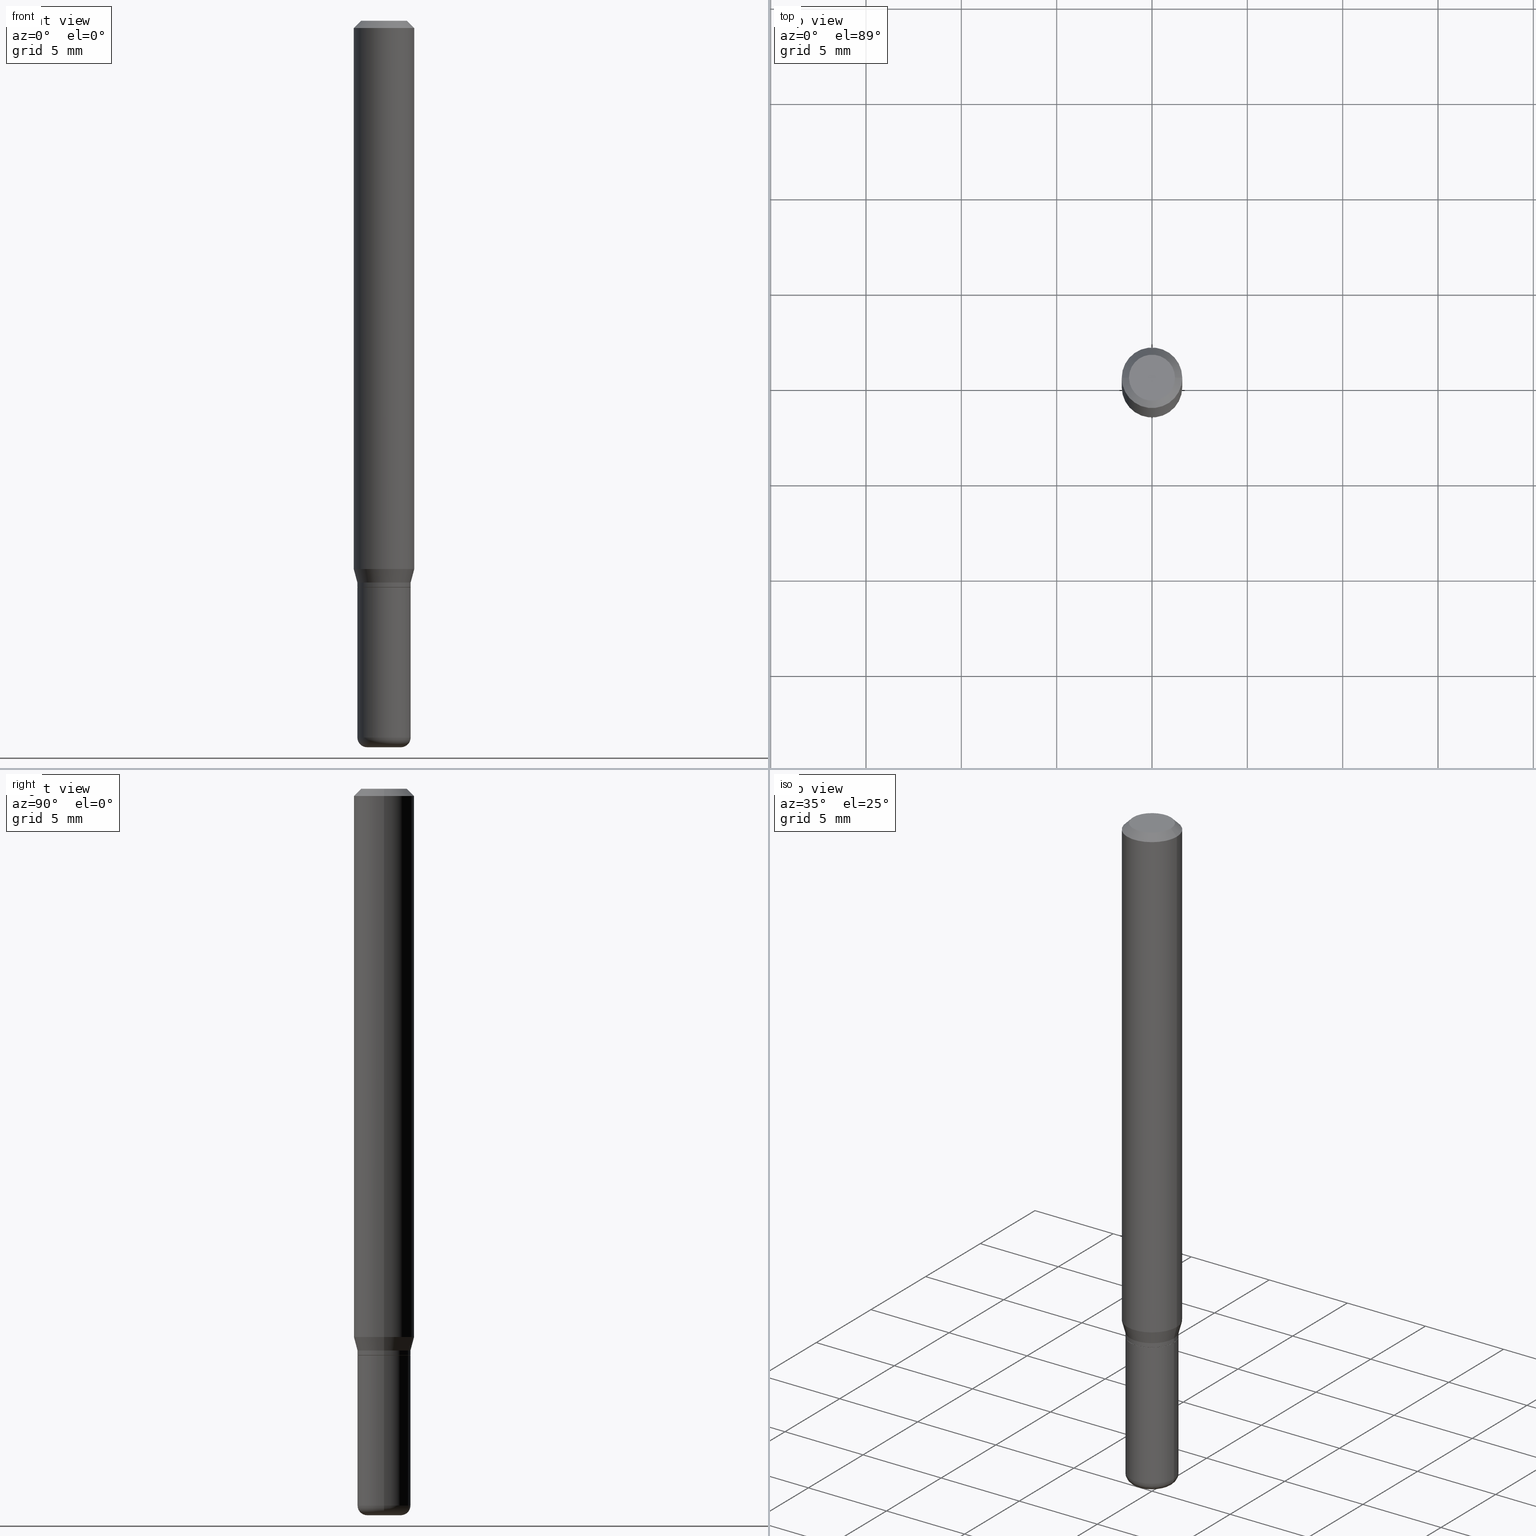
[diagram: canonical four-view strip — front | top / right | iso, engineering-drawing reading convention]
A machine part, canonical four-view strip (front | top / right | iso — engineering-drawing reading convention). The complete STEP part file that produces these views, byte-faithful:
ISO-10303-21;
HEADER;
FILE_DESCRIPTION (( 'STEP AP203' ),
    '1' );
FILE_NAME ('08759.STEP',
    '2024-02-29T20:52:16',
    ( '' ),
    ( '' ),
    'SwSTEP 2.0',
    'SolidWorks 2023',
    '' );
FILE_SCHEMA (( 'CONFIG_CONTROL_DESIGN' ));
ENDSEC;

DATA;
#1 = CARTESIAN_POINT ( 'NONE',  ( 2.836743815174758520E-29, -4.050118353058049996E-15, -1.160000000000000142 ) ) ;
#2 = PERSON ( 'UNSPECIFIED', 'UNSPECIFIED', 'UNSPECIFIED', ('UNSPECIFIED'), ('UNSPECIFIED'), ('UNSPECIFIED') ) ;
#3 = CARTESIAN_POINT ( 'NONE',  ( 0.05499999999999999334, -4.434181300330794192E-15, -1.160000000000000142 ) ) ;
#4 = EDGE_CURVE ( 'NONE', #102, #67, #190, .T. ) ;
#5 = DIRECTION ( 'NONE',  ( 1.000000000000000000, -6.982962677686265922E-15, 4.876176775795935232E-29 ) ) ;
#6 = ORIENTED_EDGE ( 'NONE', *, *, #426, .F. ) ;
#7 = DIRECTION ( 'NONE',  ( -6.982962677686266711E-15, -1.000000000000000000, 3.491481338843145583E-15 ) ) ;
#8 = VECTOR ( 'NONE', #459, 39.37007874015748143 ) ;
#9 = VERTEX_POINT ( 'NONE', #307 ) ;
#10 = PERSON_AND_ORGANIZATION_ROLE ( 'classification_officer' ) ;
#11 = LINE ( 'NONE', #58, #121 ) ;
#12 = CC_DESIGN_PERSON_AND_ORGANIZATION_ASSIGNMENT ( #192, #109, ( #452 ) ) ;
#13 = AXIS2_PLACEMENT_3D ( 'NONE', #448, #451, #172 ) ;
#14 = ORIENTED_EDGE ( 'NONE', *, *, #187, .T. ) ;
#15 = CYLINDRICAL_SURFACE ( 'NONE', #168, 0.05500000000000002109 ) ;
#16 = UNCERTAINTY_MEASURE_WITH_UNIT (LENGTH_MEASURE( 1.000000000000000082E-05 ), #164, 'distance_accuracy_value', 'NONE');
#17 = AXIS2_PLACEMENT_3D ( 'NONE', #237, #282, #240 ) ;
#18 = ORIENTED_EDGE ( 'NONE', *, *, #435, .F. ) ;
#19 = FACE_OUTER_BOUND ( 'NONE', #379, .T. ) ;
#20 = CIRCLE ( 'NONE', #430, 0.04750000000000000749 ) ;
#21 = ORIENTED_EDGE ( 'NONE', *, *, #152, .F. ) ;
#22 = FACE_OUTER_BOUND ( 'NONE', #311, .T. ) ;
#23 = EDGE_CURVE ( 'NONE', #234, #9, #29, .T. ) ;
#24 = APPROVAL ( #466, 'UNSPECIFIED' ) ;
#25 = DIRECTION ( 'NONE',  ( -2.445468806185136597E-29, 3.491481338843145583E-15, 1.000000000000000000 ) ) ;
#26 = PERSON_AND_ORGANIZATION ( #2, #157 ) ;
#27 = SECURITY_CLASSIFICATION_LEVEL ( 'unclassified' ) ;
#28 = ORIENTED_EDGE ( 'NONE', *, *, #468, .T. ) ;
#29 = CIRCLE ( 'NONE', #368, 0.05499999999999999334 ) ;
#30 = CARTESIAN_POINT ( 'NONE',  ( 0.000000000000000000, 0.000000000000000000, 0.000000000000000000 ) ) ;
#31 = MANIFOLD_SOLID_BREP ( 'Body-Move/Copy2[2]', #251 ) ;
#32 = ORIENTED_EDGE ( 'NONE', *, *, #347, .T. ) ;
#33 = LINE ( 'NONE', #191, #464 ) ;
#34 = ORIENTED_EDGE ( 'NONE', *, *, #276, .T. ) ;
#35 = CARTESIAN_POINT ( 'NONE',  ( 0.05500000000000001416, -3.840629472727447381E-16, 2.681897226687765177E-30 ) ) ;
#36 = ORIENTED_EDGE ( 'NONE', *, *, #491, .F. ) ;
#37 = ADVANCED_FACE ( 'NONE', ( #481 ), #321, .T. ) ;
#38 = DIRECTION ( 'NONE',  ( -0.2588190451025210170, 5.211531920934547886E-15, 0.9659258262890682012 ) ) ;
#39 = APPROVAL_PERSON_ORGANIZATION ( #281, #115, #285 ) ;
#40 = DIRECTION ( 'NONE',  ( -2.438088387897960049E-29, 3.491481338843145188E-15, 1.000000000000000000 ) ) ;
#41 = DIRECTION ( 'NONE',  ( -2.445468806185136597E-29, 3.491481338843145583E-15, 1.000000000000000000 ) ) ;
#42 = CARTESIAN_POINT ( 'NONE',  ( 3.668203209277704895E-29, -5.237222008264718177E-15, -1.500000000000000222 ) ) ;
#43 = CALENDAR_DATE ( 2024, 29, 2 ) ;
#44 = FACE_OUTER_BOUND ( 'NONE', #61, .T. ) ;
#45 = CARTESIAN_POINT ( 'NONE',  ( 2.861198503236610065E-29, -4.085033166446480067E-15, -1.170000000000000151 ) ) ;
#46 = LINE ( 'NONE', #331, #257 ) ;
#47 = ADVANCED_BREP_SHAPE_REPRESENTATION ( '08759', ( #205, #31, #403 ), #289 ) ;
#48 = ADVANCED_FACE ( 'NONE', ( #44 ), #163, .F. ) ;
#49 = ORIENTED_EDGE ( 'NONE', *, *, #141, .T. ) ;
#50 = CARTESIAN_POINT ( 'NONE',  ( 3.840629472727732850E-16, 0.05499999999999591327, -1.170000000000000151 ) ) ;
#51 = APPLICATION_CONTEXT ( 'configuration controlled 3d designs of mechanical parts and assemblies' ) ;
#52 = ORIENTED_EDGE ( 'NONE', *, *, #347, .F. ) ;
#53 = DIRECTION ( 'NONE',  ( 1.000000000000000000, -6.982962677686266711E-15, 4.852736867747365086E-29 ) ) ;
#54 = AXIS2_PLACEMENT_3D ( 'NONE', #66, #389, #501 ) ;
#55 = EDGE_LOOP ( 'NONE', ( #499, #425, #250, #261 ) ) ;
#56 = DIRECTION ( 'NONE',  ( 1.000000000000000000, -6.982962677686272233E-15, 0.000000000000000000 ) ) ;
#57 = AXIS2_PLACEMENT_3D ( 'NONE', #212, #7, #56 ) ;
#58 = CARTESIAN_POINT ( 'NONE',  ( -0.05500000000000002109, 3.907985046680552521E-16, -2.705414299640199063E-30 ) ) ;
#59 = DESIGN_CONTEXT ( 'detailed design', #130, 'design' ) ;
#60 = VECTOR ( 'NONE', #147, 39.37007874015748143 ) ;
#61 = EDGE_LOOP ( 'NONE', ( #429, #407 ) ) ;
#62 = DIRECTION ( 'NONE',  ( -2.445468806185136597E-29, 3.491481338843145583E-15, 1.000000000000000000 ) ) ;
#63 = ORIENTED_EDGE ( 'NONE', *, *, #220, .F. ) ;
#64 = LOCAL_TIME ( 15, 52, 16.00000000000000000, #508 ) ;
#65 = LINE ( 'NONE', #188, #73 ) ;
#66 = CARTESIAN_POINT ( 'NONE',  ( 3.619293833154002365E-29, -5.167392381487854879E-15, -1.479999999999999982 ) ) ;
#67 = VERTEX_POINT ( 'NONE', #110 ) ;
#68 = AXIS2_PLACEMENT_3D ( 'NONE', #45, #88, #160 ) ;
#69 = CONICAL_SURFACE ( 'NONE', #68, 0.05450000000000002065, 0.7853981633975507526 ) ;
#70 = CONICAL_SURFACE ( 'NONE', #254, 0.05499999999999999334, 0.2617993877991496854 ) ;
#71 = LINE ( 'NONE', #35, #8 ) ;
#72 = ORIENTED_EDGE ( 'NONE', *, *, #264, .T. ) ;
#73 = VECTOR ( 'NONE', #268, 39.37007874015748143 ) ;
#74 = EDGE_CURVE ( 'NONE', #509, #105, #402, .T. ) ;
#75 = DIRECTION ( 'NONE',  ( -2.445468806185136597E-29, 3.491481338843145583E-15, 1.000000000000000000 ) ) ;
#76 = ORIENTED_EDGE ( 'NONE', *, *, #354, .T. ) ;
#77 = AXIS2_PLACEMENT_3D ( 'NONE', #483, #126, #134 ) ;
#78 = APPROVAL_DATE_TIME ( #314, #24 ) ;
#79 = CARTESIAN_POINT ( 'NONE',  ( -0.03500000000000000333, -4.882562963784241160E-15, -1.500000000000000222 ) ) ;
#80 = CALENDAR_DATE ( 2024, 29, 2 ) ;
#81 = DIRECTION ( 'NONE',  ( -2.445468806185136877E-29, 3.491481338843145188E-15, 1.000000000000000000 ) ) ;
#82 = ADVANCED_FACE ( 'NONE', ( #320 ), #69, .T. ) ;
#83 = APPROVAL_PERSON_ORGANIZATION ( #475, #293, #162 ) ;
#84 = PERSON_AND_ORGANIZATION_ROLE ( 'creator' ) ;
#85 = CARTESIAN_POINT ( 'NONE',  ( 2.861198503236610065E-29, -4.085033166446480067E-15, -1.170000000000000151 ) ) ;
#86 = DIRECTION ( 'NONE',  ( 1.000000000000000000, -6.982962677686265922E-15, 4.876176775795935793E-29 ) ) ;
#87 = SHAPE_DEFINITION_REPRESENTATION ( #490, #47 ) ;
#88 = DIRECTION ( 'NONE',  ( -2.445468806185136597E-29, 3.491481338843145583E-15, 1.000000000000000000 ) ) ;
#89 = LINE ( 'NONE', #3, #133 ) ;
#90 = CIRCLE ( 'NONE', #103, 0.05500000000000000028 ) ;
#91 = CARTESIAN_POINT ( 'NONE',  ( 0.05450000000000002065, -4.465604632380382045E-15, -1.170000000000000151 ) ) ;
#92 = CIRCLE ( 'NONE', #423, 0.03500000000000000333 ) ;
#93 = DIRECTION ( 'NONE',  ( -2.445468806185136597E-29, 3.491481338843145583E-15, 1.000000000000000000 ) ) ;
#94 = EDGE_LOOP ( 'NONE', ( #328, #297, #340, #474 ) ) ;
#95 = CYLINDRICAL_SURFACE ( 'NONE', #279, 0.05500000000000002109 ) ;
#96 = ORIENTED_EDGE ( 'NONE', *, *, #507, .T. ) ;
#97 = DIRECTION ( 'NONE',  ( 1.000000000000000000, -6.982962677686275388E-15, 0.000000000000000000 ) ) ;
#98 = LOCAL_TIME ( 15, 52, 16.00000000000000000, #308 ) ;
#99 = CARTESIAN_POINT ( 'NONE',  ( -0.03500000000000000333, -4.918702423971819593E-15, -1.479999999999999982 ) ) ;
#100 = CARTESIAN_POINT ( 'NONE',  ( 0.05500000000000000028, -4.469096113719225052E-15, -1.170000000000000151 ) ) ;
#101 = DIRECTION ( 'NONE',  ( 1.000000000000000000, -6.982962677686266711E-15, 4.876176775795935793E-29 ) ) ;
#102 = VERTEX_POINT ( 'NONE', #208 ) ;
#103 = AXIS2_PLACEMENT_3D ( 'NONE', #419, #62, #222 ) ;
#104 = CARTESIAN_POINT ( 'NONE',  ( 3.619293833154002365E-29, -5.167392381487854879E-15, -1.479999999999999982 ) ) ;
#105 = VERTEX_POINT ( 'NONE', #441 ) ;
#106 = DIRECTION ( 'NONE',  ( 1.000000000000000000, -6.982962677686266711E-15, 4.852736867747365086E-29 ) ) ;
#107 = EDGE_CURVE ( 'NONE', #186, #391, #232, .T. ) ;
#108 = CARTESIAN_POINT ( 'NONE',  ( -0.04750000000000000749, 3.578768372314221353E-16, 2.731847993664239060E-16 ) ) ;
#109 = PERSON_AND_ORGANIZATION_ROLE ( 'design_owner' ) ;
#110 = CARTESIAN_POINT ( 'NONE',  ( 0.06250000000000000000, -4.888073874380378612E-16, -0.01499999999999970281 ) ) ;
#111 = AXIS2_PLACEMENT_3D ( 'NONE', #99, #179, #176 ) ;
#112 = AXIS2_PLACEMENT_3D ( 'NONE', #439, #360, #518 ) ;
#113 = DATE_TIME_ROLE ( 'creation_date' ) ;
#114 = EDGE_CURVE ( 'NONE', #234, #169, #89, .T. ) ;
#115 = APPROVAL ( #119, 'UNSPECIFIED' ) ;
#116 = CARTESIAN_POINT ( 'NONE',  ( 2.836743815174758520E-29, -4.050118353058049996E-15, -1.160000000000000142 ) ) ;
#117 = FACE_OUTER_BOUND ( 'NONE', #94, .T. ) ;
#118 = TOROIDAL_SURFACE ( 'NONE', #54, 0.03500000000000000333, 0.02000000000000003511 ) ;
#119 = APPROVAL_STATUS ( 'not_yet_approved' ) ;
#120 = DIRECTION ( 'NONE',  ( 1.000000000000000000, -6.982962677686265922E-15, 4.876176775795935793E-29 ) ) ;
#121 = VECTOR ( 'NONE', #175, 39.37007874015748143 ) ;
#122 = AXIS2_PLACEMENT_3D ( 'NONE', #252, #247, #256 ) ;
#123 = CARTESIAN_POINT ( 'NONE',  ( 2.836743815174758520E-29, -4.050118353058049996E-15, -1.160000000000000142 ) ) ;
#124 = AXIS2_PLACEMENT_3D ( 'NONE', #408, #367, #295 ) ;
#125 = AXIS2_PLACEMENT_3D ( 'NONE', #166, #246, #120 ) ;
#126 = DIRECTION ( 'NONE',  ( -2.445468806185136597E-29, 3.491481338843145583E-15, 1.000000000000000000 ) ) ;
#127 = PRODUCT_DEFINITION_FORMATION_WITH_SPECIFIED_SOURCE ( 'ANY', '', #452, .NOT_KNOWN. ) ;
#128 = DIRECTION ( 'NONE',  ( -2.445468806185136597E-29, 3.491481338843145583E-15, 1.000000000000000000 ) ) ;
#129 = ORIENTED_EDGE ( 'NONE', *, *, #248, .F. ) ;
#130 = APPLICATION_CONTEXT ( 'configuration controlled 3d designs of mechanical parts and assemblies' ) ;
#131 = FACE_OUTER_BOUND ( 'NONE', #334, .T. ) ;
#132 = EDGE_LOOP ( 'NONE', ( #393, #49, #36, #500 ) ) ;
#133 = VECTOR ( 'NONE', #356, 39.37007874015748143 ) ;
#134 = DIRECTION ( 'NONE',  ( 1.000000000000000000, -6.982962677686266711E-15, 4.876176775795935793E-29 ) ) ;
#135 = ORIENTED_EDGE ( 'NONE', *, *, #4, .F. ) ;
#136 = DIRECTION ( 'NONE',  ( 1.000000000000000000, -6.982962677686262766E-15, 0.000000000000000000 ) ) ;
#137 = LOCAL_TIME ( 15, 52, 16.00000000000000000, #400 ) ;
#138 = DIRECTION ( 'NONE',  ( -0.7071067811866199593, 7.493145998870616062E-15, 0.7071067811864750752 ) ) ;
#139 = AXIS2_PLACEMENT_3D ( 'NONE', #373, #298, #288 ) ;
#140 = EDGE_LOOP ( 'NONE', ( #337, #32, #193, #216 ) ) ;
#141 = EDGE_CURVE ( 'NONE', #9, #509, #401, .T. ) ;
#142 = CARTESIAN_POINT ( 'NONE',  ( 0.03500000000000000333, -5.481625701983738143E-15, -1.500000000000000222 ) ) ;
#143 = DIRECTION ( 'NONE',  ( 2.438088387897960049E-29, -3.491481338843145188E-15, -1.000000000000000000 ) ) ;
#144 = AXIS2_PLACEMENT_3D ( 'NONE', #469, #392, #300 ) ;
#145 = EDGE_LOOP ( 'NONE', ( #460, #76, #463, #156 ) ) ;
#146 = FACE_OUTER_BOUND ( 'NONE', #371, .T. ) ;
#147 = DIRECTION ( 'NONE',  ( 0.7071067811865479058, -7.319954787623257623E-15, -0.7071067811865471286 ) ) ;
#148 = ADVANCED_FACE ( 'NONE', ( #286 ), #245, .T. ) ;
#149 = EDGE_LOOP ( 'NONE', ( #488, #341, #72, #369 ) ) ;
#150 = CIRCLE ( 'NONE', #227, 0.04750000000000000749 ) ;
#151 = DIRECTION ( 'NONE',  ( -0.7071067811865479058, 2.468850131082261005E-15, -0.7071067811865471286 ) ) ;
#152 = EDGE_CURVE ( 'NONE', #9, #234, #470, .T. ) ;
#153 = AXIS2_PLACEMENT_3D ( 'NONE', #123, #363, #396 ) ;
#154 =( NAMED_UNIT ( * ) PLANE_ANGLE_UNIT ( ) SI_UNIT ( $, .RADIAN. ) );
#155 = EDGE_LOOP ( 'NONE', ( #270, #218, #385, #6 ) ) ;
#156 = ORIENTED_EDGE ( 'NONE', *, *, #174, .F. ) ;
#157 = ORGANIZATION ( 'UNSPECIFIED', 'UNSPECIFIED', '' ) ;
#158 = EDGE_CURVE ( 'NONE', #105, #67, #445, .T. ) ;
#159 = CC_DESIGN_DATE_AND_TIME_ASSIGNMENT ( #322, #113, ( #272 ) ) ;
#160 = DIRECTION ( 'NONE',  ( 1.000000000000000000, -6.982962677686267499E-15, 0.000000000000000000 ) ) ;
#161 = ADVANCED_FACE ( 'NONE', ( #196 ), #70, .T. ) ;
#162 = APPROVAL_ROLE ( '' ) ;
#163 = PLANE ( 'NONE',  #125 ) ;
#164 =( CONVERSION_BASED_UNIT ( 'INCH', #198 ) LENGTH_UNIT ( ) NAMED_UNIT ( #170 ) );
#165 = CARTESIAN_POINT ( 'NONE',  ( 3.619293833154002365E-29, -5.167392381487854879E-15, -1.479999999999999982 ) ) ;
#166 = CARTESIAN_POINT ( 'NONE',  ( 2.861198503236610065E-29, -4.085033166446480067E-15, -1.170000000000000151 ) ) ;
#167 = ADVANCED_FACE ( 'NONE', ( #117 ), #397, .T. ) ;
#168 = AXIS2_PLACEMENT_3D ( 'NONE', #219, #454, #5 ) ;
#169 = VERTEX_POINT ( 'NONE', #202 ) ;
#170 = DIMENSIONAL_EXPONENTS ( 1.000000000000000000, 0.000000000000000000, 0.000000000000000000, 0.000000000000000000, 0.000000000000000000, 0.000000000000000000, 0.000000000000000000 ) ;
#171 = CARTESIAN_POINT ( 'NONE',  ( 3.668203209277704895E-29, -5.237222008264718177E-15, -1.500000000000000222 ) ) ;
#172 = DIRECTION ( 'NONE',  ( 1.000000000000000000, -6.982962677686266711E-15, 0.000000000000000000 ) ) ;
#173 = ORIENTED_EDGE ( 'NONE', *, *, #248, .T. ) ;
#174 = EDGE_CURVE ( 'NONE', #418, #505, #493, .T. ) ;
#175 = DIRECTION ( 'NONE',  ( -2.445468806185136877E-29, 3.491481338843145188E-15, 1.000000000000000000 ) ) ;
#176 = DIRECTION ( 'NONE',  ( -1.000000000000000000, 7.105427357601009747E-15, 0.000000000000000000 ) ) ;
#177 = CARTESIAN_POINT ( 'NONE',  ( -6.680649051745406845E-45, 9.538196290434862081E-31, 2.731847993664263218E-16 ) ) ;
#178 = CC_DESIGN_PERSON_AND_ORGANIZATION_ASSIGNMENT ( #271, #215, ( #127 ) ) ;
#179 = DIRECTION ( 'NONE',  ( 7.105427357601001859E-15, 1.000000000000000000, -3.491481338843145583E-15 ) ) ;
#180 = CONICAL_SURFACE ( 'NONE', #411, 0.06250000000000000000, 0.7853981633974488341 ) ;
#181 = EDGE_LOOP ( 'NONE', ( #213, #390, #253, #52 ) ) ;
#182 = CARTESIAN_POINT ( 'NONE',  ( 0.000000000000000000, 0.000000000000000000, 0.000000000000000000 ) ) ;
#183 = ORIENTED_EDGE ( 'NONE', *, *, #74, .T. ) ;
#184 = ORIENTED_EDGE ( 'NONE', *, *, #174, .T. ) ;
#185 = DIRECTION ( 'NONE',  ( 1.000000000000000000, -6.982962677686265922E-15, 4.876176775795935232E-29 ) ) ;
#186 = VERTEX_POINT ( 'NONE', #79 ) ;
#187 = EDGE_CURVE ( 'NONE', #391, #186, #92, .T. ) ;
#188 = CARTESIAN_POINT ( 'NONE',  ( -0.05500000000000001416, 3.907985046680552028E-16, -2.705414299640198712E-30 ) ) ;
#189 = CC_DESIGN_APPROVAL ( #115, ( #127 ) ) ;
#190 = LINE ( 'NONE', #504, #60 ) ;
#191 = CARTESIAN_POINT ( 'NONE',  ( 0.05500000000000002109, -3.840629472727447874E-16, 2.681897226687765527E-30 ) ) ;
#192 = PERSON_AND_ORGANIZATION ( #2, #157 ) ;
#193 = ORIENTED_EDGE ( 'NONE', *, *, #395, .T. ) ;
#194 = CARTESIAN_POINT ( 'NONE',  ( 2.861198503236610065E-29, -4.085033166446480067E-15, -1.170000000000000151 ) ) ;
#195 =( LENGTH_UNIT ( ) NAMED_UNIT ( * ) SI_UNIT ( $, .METRE. ) );
#196 = FACE_OUTER_BOUND ( 'NONE', #132, .T. ) ;
#197 = CIRCLE ( 'NONE', #57, 0.02000000000000003511 ) ;
#198 = LENGTH_MEASURE_WITH_UNIT ( LENGTH_MEASURE( 0.02539999999999999897 ), #195 );
#199 = CIRCLE ( 'NONE', #201, 0.05500000000000003497 ) ;
#200 = CC_DESIGN_PERSON_AND_ORGANIZATION_ASSIGNMENT ( #346, #10, ( #274 ) ) ;
#201 = AXIS2_PLACEMENT_3D ( 'NONE', #165, #370, #97 ) ;
#202 = CARTESIAN_POINT ( 'NONE',  ( 0.06250000000000000000, -4.388825627286631627E-15, -1.132009618943233598 ) ) ;
#203 = CALENDAR_DATE ( 2024, 29, 2 ) ;
#204 = EDGE_CURVE ( 'NONE', #315, #304, #404, .T. ) ;
#205 = MANIFOLD_SOLID_BREP ( 'Body-Move/Copy2[1]', #310 ) ;
#206 = DIRECTION ( 'NONE',  ( 1.000000000000000000, -6.982962677686262766E-15, 0.000000000000000000 ) ) ;
#207 = LOCAL_TIME ( 15, 52, 16.00000000000000000, #398 ) ;
#208 = CARTESIAN_POINT ( 'NONE',  ( 0.04750000000000000749, -4.035134999187568762E-16, 2.731847993664288856E-16 ) ) ;
#209 = CARTESIAN_POINT ( 'NONE',  ( -0.05500000000000002109, -3.692488921109003903E-15, -1.169500000000000206 ) ) ;
#210 = EDGE_CURVE ( 'NONE', #382, #374, #450, .T. ) ;
#211 = ORIENTED_EDGE ( 'NONE', *, *, #435, .T. ) ;
#212 = CARTESIAN_POINT ( 'NONE',  ( 0.03500000000000000333, -5.411796075206874844E-15, -1.479999999999999982 ) ) ;
#213 = ORIENTED_EDGE ( 'NONE', *, *, #141, .F. ) ;
#214 = DIRECTION ( 'NONE',  ( -2.445468806185136597E-29, 3.491481338843145583E-15, 1.000000000000000000 ) ) ;
#215 = PERSON_AND_ORGANIZATION_ROLE ( 'design_supplier' ) ;
#216 = ORIENTED_EDGE ( 'NONE', *, *, #158, .F. ) ;
#217 = CARTESIAN_POINT ( 'NONE',  ( 2.768294211427201206E-29, -3.952390459931240746E-15, -1.132009618943233598 ) ) ;
#218 = ORIENTED_EDGE ( 'NONE', *, *, #290, .T. ) ;
#219 = CARTESIAN_POINT ( 'NONE',  ( 0.000000000000000000, 0.000000000000000000, 0.000000000000000000 ) ) ;
#220 = EDGE_CURVE ( 'NONE', #417, #294, #199, .T. ) ;
#221 = ORIENTED_EDGE ( 'NONE', *, *, #210, .T. ) ;
#222 = DIRECTION ( 'NONE',  ( 1.000000000000000000, -6.982962677686262766E-15, 0.000000000000000000 ) ) ;
#223 = CC_DESIGN_APPROVAL ( #293, ( #272 ) ) ;
#224 = ORIENTED_EDGE ( 'NONE', *, *, #395, .F. ) ;
#225 = DIRECTION ( 'NONE',  ( -2.445468806185136597E-29, 3.491481338843145583E-15, 1.000000000000000000 ) ) ;
#226 = DATE_AND_TIME ( #422, #98 ) ;
#227 = AXIS2_PLACEMENT_3D ( 'NONE', #177, #93, #53 ) ;
#228 = ADVANCED_FACE ( 'NONE', ( #131 ), #375, .T. ) ;
#229 = PRODUCT_RELATED_PRODUCT_CATEGORY ( 'detail', '', ( #452 ) ) ;
#230 = FACE_OUTER_BOUND ( 'NONE', #140, .T. ) ;
#231 = ORIENTED_EDGE ( 'NONE', *, *, #243, .F. ) ;
#232 = CIRCLE ( 'NONE', #361, 0.03500000000000000333 ) ;
#233 = DIRECTION ( 'NONE',  ( -2.445468806185136877E-29, 3.491481338843145188E-15, 1.000000000000000000 ) ) ;
#234 = VERTEX_POINT ( 'NONE', #489 ) ;
#235 = CARTESIAN_POINT ( 'NONE',  ( 3.668203209277632395E-31, -5.237222008264614861E-17, -0.01499999999999970281 ) ) ;
#236 = ORIENTED_EDGE ( 'NONE', *, *, #243, .T. ) ;
#237 = CARTESIAN_POINT ( 'NONE',  ( 3.668203209277632395E-31, -5.237222008264614861E-17, -0.01499999999999970281 ) ) ;
#238 = ADVANCED_FACE ( 'NONE', ( #413 ), #327, .F. ) ;
#239 = PERSON_AND_ORGANIZATION ( #2, #157 ) ;
#240 = DIRECTION ( 'NONE',  ( -1.000000000000000000, 6.982962677686266711E-15, 0.000000000000000000 ) ) ;
#241 = AXIS2_PLACEMENT_3D ( 'NONE', #182, #498, #101 ) ;
#242 = DIRECTION ( 'NONE',  ( -2.445468806185136597E-29, 3.491481338843145583E-15, 1.000000000000000000 ) ) ;
#243 = EDGE_CURVE ( 'NONE', #186, #294, #358, .T. ) ;
#244 = DIRECTION ( 'NONE',  ( 1.000000000000000000, -6.982962677686263555E-15, 0.000000000000000000 ) ) ;
#245 = CONICAL_SURFACE ( 'NONE', #17, 0.06250000000000000000, 0.7853981633974488341 ) ;
#246 = DIRECTION ( 'NONE',  ( -2.438088387897960049E-29, 3.491481338843145188E-15, 1.000000000000000000 ) ) ;
#247 = DIRECTION ( 'NONE',  ( -2.445468806185136597E-29, 3.491481338843145583E-15, 1.000000000000000000 ) ) ;
#248 = EDGE_CURVE ( 'NONE', #391, #417, #197, .T. ) ;
#249 = DIRECTION ( 'NONE',  ( 1.000000000000000000, -6.982962677686265922E-15, 4.876176775795935232E-29 ) ) ;
#250 = ORIENTED_EDGE ( 'NONE', *, *, #319, .T. ) ;
#251 = CLOSED_SHELL ( 'NONE', ( #409, #167, #148, #342, #161, #37, #484, #449, #458, #48, #82, #228 ) ) ;
#252 = CARTESIAN_POINT ( 'NONE',  ( 2.861198503236610065E-29, -4.085033166446480067E-15, -1.170000000000000151 ) ) ;
#253 = ORIENTED_EDGE ( 'NONE', *, *, #114, .T. ) ;
#254 = AXIS2_PLACEMENT_3D ( 'NONE', #477, #325, #283 ) ;
#255 = VECTOR ( 'NONE', #151, 39.37007874015748143 ) ;
#256 = DIRECTION ( 'NONE',  ( 1.000000000000000000, -6.982962677686267499E-15, 0.000000000000000000 ) ) ;
#257 = VECTOR ( 'NONE', #258, 39.37007874015748143 ) ;
#258 = DIRECTION ( 'NONE',  ( 0.7071067811866199593, -2.468850131083015945E-15, 0.7071067811864750752 ) ) ;
#259 = ORIENTED_EDGE ( 'NONE', *, *, #187, .F. ) ;
#260 = FACE_OUTER_BOUND ( 'NONE', #263, .T. ) ;
#261 = ORIENTED_EDGE ( 'NONE', *, *, #276, .F. ) ;
#262 = PLANE ( 'NONE',  #502 ) ;
#263 = EDGE_LOOP ( 'NONE', ( #14, #236, #63, #129 ) ) ;
#264 = EDGE_CURVE ( 'NONE', #67, #105, #406, .T. ) ;
#265 = CARTESIAN_POINT ( 'NONE',  ( -0.05450000000000002065, -3.697787375457225517E-15, -1.170000000000000151 ) ) ;
#266 = APPROVAL_ROLE ( '' ) ;
#267 = ORIENTED_EDGE ( 'NONE', *, *, #443, .T. ) ;
#268 = DIRECTION ( 'NONE',  ( -2.445468806185136877E-29, 3.491481338843145188E-15, 1.000000000000000000 ) ) ;
#269 = VECTOR ( 'NONE', #81, 39.37007874015748143 ) ;
#270 = ORIENTED_EDGE ( 'NONE', *, *, #220, .T. ) ;
#271 = PERSON_AND_ORGANIZATION ( #2, #157 ) ;
#272 = PRODUCT_DEFINITION ( 'UNKNOWN', '', #127, #59 ) ;
#273 = DIRECTION ( 'NONE',  ( 2.445468806185136597E-29, -3.491481338843145583E-15, -1.000000000000000000 ) ) ;
#274 = SECURITY_CLASSIFICATION ( '', '', #27 ) ;
#275 = ORIENTED_EDGE ( 'NONE', *, *, #264, .F. ) ;
#276 = EDGE_CURVE ( 'NONE', #374, #382, #349, .T. ) ;
#277 = APPROVAL_DATE_TIME ( #478, #293 ) ;
#278 = CARTESIAN_POINT ( 'NONE',  ( -0.06250000000000000000, 4.440892098500626162E-16, -3.074334431409316114E-30 ) ) ;
#279 = AXIS2_PLACEMENT_3D ( 'NONE', #486, #128, #249 ) ;
#280 = VECTOR ( 'NONE', #138, 39.37007874015748143 ) ;
#281 = PERSON_AND_ORGANIZATION ( #2, #157 ) ;
#282 = DIRECTION ( 'NONE',  ( 2.445468806185136597E-29, -3.491481338843145583E-15, -1.000000000000000000 ) ) ;
#283 = DIRECTION ( 'NONE',  ( 1.000000000000000000, -6.982962677686263555E-15, 0.000000000000000000 ) ) ;
#284 = CC_DESIGN_APPROVAL ( #24, ( #274 ) ) ;
#285 = APPROVAL_ROLE ( '' ) ;
#286 = FACE_OUTER_BOUND ( 'NONE', #149, .T. ) ;
#287 = DIRECTION ( 'NONE',  ( -2.445468806185136597E-29, 3.491481338843145583E-15, 1.000000000000000000 ) ) ;
#288 = DIRECTION ( 'NONE',  ( 1.000000000000000000, -6.982962677686275388E-15, 0.000000000000000000 ) ) ;
#289 =( GEOMETRIC_REPRESENTATION_CONTEXT ( 3 ) GLOBAL_UNCERTAINTY_ASSIGNED_CONTEXT ( ( #16 ) ) GLOBAL_UNIT_ASSIGNED_CONTEXT ( ( #164, #154, #438 ) ) REPRESENTATION_CONTEXT ( 'NONE', 'WORKASPACE' ) );
#290 = EDGE_CURVE ( 'NONE', #294, #418, #11, .T. ) ;
#291 = CYLINDRICAL_SURFACE ( 'NONE', #77, 0.06250000000000000000 ) ;
#292 = DIRECTION ( 'NONE',  ( -1.000000000000000000, 6.982962677686265922E-15, -4.876176775795935793E-29 ) ) ;
#293 = APPROVAL ( #359, 'UNSPECIFIED' ) ;
#294 = VERTEX_POINT ( 'NONE', #446 ) ;
#295 = DIRECTION ( 'NONE',  ( 1.000000000000000000, -6.982962677686265922E-15, 4.876176775795935232E-29 ) ) ;
#296 = ADVANCED_FACE ( 'NONE', ( #410 ), #95, .T. ) ;
#297 = ORIENTED_EDGE ( 'NONE', *, *, #388, .T. ) ;
#298 = DIRECTION ( 'NONE',  ( -2.445468806185136597E-29, 3.491481338843145583E-15, 1.000000000000000000 ) ) ;
#299 = CARTESIAN_POINT ( 'NONE',  ( -0.05500000000000000028, -4.235414269299112812E-15, -1.170000000000000151 ) ) ;
#300 = DIRECTION ( 'NONE',  ( 1.000000000000000000, -6.982962677686262766E-15, 0.000000000000000000 ) ) ;
#301 = ORIENTED_EDGE ( 'NONE', *, *, #332, .F. ) ;
#302 = DIRECTION ( 'NONE',  ( -1.000000000000000000, 6.982962677686265922E-15, -4.876176775795935793E-29 ) ) ;
#303 = EDGE_LOOP ( 'NONE', ( #135, #301, #267, #387 ) ) ;
#304 = VERTEX_POINT ( 'NONE', #492 ) ;
#305 = DIRECTION ( 'NONE',  ( -2.445468806185136877E-29, 3.491481338843145188E-15, 1.000000000000000000 ) ) ;
#306 = AXIS2_PLACEMENT_3D ( 'NONE', #378, #415, #335 ) ;
#307 = CARTESIAN_POINT ( 'NONE',  ( -0.05499999999999999334, -3.583810549235585944E-15, -1.160000000000000142 ) ) ;
#308 = COORDINATED_UNIVERSAL_TIME_OFFSET ( 5, 0, .BEHIND. ) ;
#309 = FACE_OUTER_BOUND ( 'NONE', #303, .T. ) ;
#310 = CLOSED_SHELL ( 'NONE', ( #420, #312, #238, #296, #372, #511 ) ) ;
#311 = EDGE_LOOP ( 'NONE', ( #221, #211, #467, #381 ) ) ;
#312 = ADVANCED_FACE ( 'NONE', ( #329 ), #15, .T. ) ;
#313 = PERSON_AND_ORGANIZATION ( #2, #157 ) ;
#314 = DATE_AND_TIME ( #317, #64 ) ;
#315 = VERTEX_POINT ( 'NONE', #91 ) ;
#316 = APPLICATION_PROTOCOL_DEFINITION ( 'international standard', 'config_control_design', 1994, #130 ) ;
#317 = CALENDAR_DATE ( 2024, 29, 2 ) ;
#318 = DIRECTION ( 'NONE',  ( 1.000000000000000000, -6.982962677686267499E-15, 0.000000000000000000 ) ) ;
#319 = EDGE_CURVE ( 'NONE', #315, #382, #46, .T. ) ;
#320 = FACE_OUTER_BOUND ( 'NONE', #55, .T. ) ;
#321 = CONICAL_SURFACE ( 'NONE', #377, 0.05499999999999999334, 0.2617993877991496854 ) ;
#322 = DATE_AND_TIME ( #203, #207 ) ;
#323 = CARTESIAN_POINT ( 'NONE',  ( 2.861198503236610065E-29, -4.085033166446480067E-15, -1.170000000000000151 ) ) ;
#324 = DIRECTION ( 'NONE',  ( -2.445468806185136597E-29, 3.491481338843145583E-15, 1.000000000000000000 ) ) ;
#325 = DIRECTION ( 'NONE',  ( -2.445468806185136597E-29, 3.491481338843145583E-15, 1.000000000000000000 ) ) ;
#326 = EDGE_CURVE ( 'NONE', #304, #315, #456, .T. ) ;
#327 = PLANE ( 'NONE',  #350 ) ;
#328 = ORIENTED_EDGE ( 'NONE', *, *, #204, .T. ) ;
#329 = FACE_OUTER_BOUND ( 'NONE', #155, .T. ) ;
#330 = AXIS2_PLACEMENT_3D ( 'NONE', #194, #394, #476 ) ;
#331 = CARTESIAN_POINT ( 'NONE',  ( 0.05450000000000002065, -4.465604632380382045E-15, -1.170000000000000151 ) ) ;
#332 = EDGE_CURVE ( 'NONE', #453, #102, #150, .T. ) ;
#333 = ORIENTED_EDGE ( 'NONE', *, *, #354, .F. ) ;
#334 = EDGE_LOOP ( 'NONE', ( #18, #34, #510, #21 ) ) ;
#335 = DIRECTION ( 'NONE',  ( 1.000000000000000000, -6.982962677686268288E-15, 0.000000000000000000 ) ) ;
#336 = CARTESIAN_POINT ( 'NONE',  ( -0.06250000000000000000, 3.840629472727455270E-16, -0.01499999999999970281 ) ) ;
#337 = ORIENTED_EDGE ( 'NONE', *, *, #74, .F. ) ;
#338 = VECTOR ( 'NONE', #233, 39.37007874015748143 ) ;
#339 = LINE ( 'NONE', #265, #280 ) ;
#340 = ORIENTED_EDGE ( 'NONE', *, *, #210, .F. ) ;
#341 = ORIENTED_EDGE ( 'NONE', *, *, #4, .T. ) ;
#342 = ADVANCED_FACE ( 'NONE', ( #19 ), #291, .T. ) ;
#343 = CARTESIAN_POINT ( 'NONE',  ( 0.05500000000000003497, -5.551455328760600652E-15, -1.479999999999999982 ) ) ;
#344 = ORIENTED_EDGE ( 'NONE', *, *, #107, .F. ) ;
#345 = CARTESIAN_POINT ( 'NONE',  ( -6.680649051745406845E-45, 9.538196290434862081E-31, 2.731847993664263218E-16 ) ) ;
#346 = PERSON_AND_ORGANIZATION ( #2, #157 ) ;
#347 = EDGE_CURVE ( 'NONE', #509, #169, #457, .T. ) ;
#348 = EDGE_LOOP ( 'NONE', ( #259, #344 ) ) ;
#349 = CIRCLE ( 'NONE', #306, 0.05500000000000002109 ) ;
#350 = AXIS2_PLACEMENT_3D ( 'NONE', #50, #455, #292 ) ;
#351 = APPROVAL_DATE_TIME ( #362, #115 ) ;
#352 = CARTESIAN_POINT ( 'NONE',  ( 0.000000000000000000, 0.000000000000000000, 0.000000000000000000 ) ) ;
#353 = CARTESIAN_POINT ( 'NONE',  ( 3.668203209277632395E-31, -5.237222008264614861E-17, -0.01499999999999970281 ) ) ;
#354 = EDGE_CURVE ( 'NONE', #294, #417, #357, .T. ) ;
#355 = DIRECTION ( 'NONE',  ( 0.000000000000000000, 0.000000000000000000, 1.000000000000000000 ) ) ;
#356 = DIRECTION ( 'NONE',  ( 0.2588190451025210170, 1.565188264969624531E-15, 0.9659258262890682012 ) ) ;
#357 = CIRCLE ( 'NONE', #139, 0.05500000000000003497 ) ;
#358 = CIRCLE ( 'NONE', #111, 0.02000000000000003511 ) ;
#359 = APPROVAL_STATUS ( 'not_yet_approved' ) ;
#360 = DIRECTION ( 'NONE',  ( -2.445468806185136597E-29, 3.491481338843145583E-15, 1.000000000000000000 ) ) ;
#361 = AXIS2_PLACEMENT_3D ( 'NONE', #171, #324, #365 ) ;
#362 = DATE_AND_TIME ( #43, #137 ) ;
#363 = DIRECTION ( 'NONE',  ( -2.445468806185136597E-29, 3.491481338843145583E-15, 1.000000000000000000 ) ) ;
#364 = AXIS2_PLACEMENT_3D ( 'NONE', #431, #143, #302 ) ;
#365 = DIRECTION ( 'NONE',  ( 1.000000000000000000, -6.982962677686276966E-15, 0.000000000000000000 ) ) ;
#366 = AXIS2_PLACEMENT_3D ( 'NONE', #217, #214, #136 ) ;
#367 = DIRECTION ( 'NONE',  ( -2.445468806185136597E-29, 3.491481338843145583E-15, 1.000000000000000000 ) ) ;
#368 = AXIS2_PLACEMENT_3D ( 'NONE', #116, #516, #244 ) ;
#369 = ORIENTED_EDGE ( 'NONE', *, *, #443, .F. ) ;
#370 = DIRECTION ( 'NONE',  ( -2.445468806185136597E-29, 3.491481338843145583E-15, 1.000000000000000000 ) ) ;
#371 = EDGE_LOOP ( 'NONE', ( #517, #28 ) ) ;
#372 = ADVANCED_FACE ( 'NONE', ( #405 ), #434, .T. ) ;
#373 = CARTESIAN_POINT ( 'NONE',  ( 3.619293833154002365E-29, -5.167392381487854879E-15, -1.479999999999999982 ) ) ;
#374 = VERTEX_POINT ( 'NONE', #209 ) ;
#375 = CYLINDRICAL_SURFACE ( 'NONE', #124, 0.05500000000000001416 ) ;
#376 = EDGE_LOOP ( 'NONE', ( #96, #184 ) ) ;
#377 = AXIS2_PLACEMENT_3D ( 'NONE', #1, #41, #514 ) ;
#378 = CARTESIAN_POINT ( 'NONE',  ( 2.859975768833517824E-29, -4.083287425777059353E-15, -1.169500000000000206 ) ) ;
#379 = EDGE_LOOP ( 'NONE', ( #414, #183, #275, #224 ) ) ;
#380 = CARTESIAN_POINT ( 'NONE',  ( -0.06250000000000000000, -3.508301250081178130E-15, -1.132009618943233598 ) ) ;
#381 = ORIENTED_EDGE ( 'NONE', *, *, #494, .F. ) ;
#382 = VERTEX_POINT ( 'NONE', #495 ) ;
#383 = CARTESIAN_POINT ( 'NONE',  ( 0.06250000000000000000, -4.364351673553916694E-16, 3.047610484872459871E-30 ) ) ;
#384 = DATE_TIME_ROLE ( 'classification_date' ) ;
#385 = ORIENTED_EDGE ( 'NONE', *, *, #507, .F. ) ;
#386 = LINE ( 'NONE', #383, #338 ) ;
#387 = ORIENTED_EDGE ( 'NONE', *, *, #158, .T. ) ;
#388 = EDGE_CURVE ( 'NONE', #304, #374, #339, .T. ) ;
#389 = DIRECTION ( 'NONE',  ( -2.445468806185136597E-29, 3.491481338843145583E-15, 1.000000000000000000 ) ) ;
#390 = ORIENTED_EDGE ( 'NONE', *, *, #152, .T. ) ;
#391 = VERTEX_POINT ( 'NONE', #142 ) ;
#392 = DIRECTION ( 'NONE',  ( -2.445468806185136597E-29, 3.491481338843145583E-15, 1.000000000000000000 ) ) ;
#393 = ORIENTED_EDGE ( 'NONE', *, *, #23, .T. ) ;
#394 = DIRECTION ( 'NONE',  ( -2.445468806185136597E-29, 3.491481338843145583E-15, 1.000000000000000000 ) ) ;
#395 = EDGE_CURVE ( 'NONE', #169, #67, #386, .T. ) ;
#396 = DIRECTION ( 'NONE',  ( 1.000000000000000000, -6.982962677686263555E-15, 0.000000000000000000 ) ) ;
#397 = CONICAL_SURFACE ( 'NONE', #412, 0.05450000000000002065, 0.7853981633975507526 ) ;
#398 = COORDINATED_UNIVERSAL_TIME_OFFSET ( 5, 0, .BEHIND. ) ;
#399 = DIRECTION ( 'NONE',  ( -2.445468806185136597E-29, 3.491481338843145583E-15, 1.000000000000000000 ) ) ;
#400 = COORDINATED_UNIVERSAL_TIME_OFFSET ( 5, 0, .BEHIND. ) ;
#401 = LINE ( 'NONE', #482, #427 ) ;
#402 = LINE ( 'NONE', #278, #269 ) ;
#403 = AXIS2_PLACEMENT_3D ( 'NONE', #352, #355, #515 ) ;
#404 = CIRCLE ( 'NONE', #330, 0.05450000000000002065 ) ;
#405 = FACE_OUTER_BOUND ( 'NONE', #496, .T. ) ;
#406 = CIRCLE ( 'NONE', #13, 0.06250000000000000000 ) ;
#407 = ORIENTED_EDGE ( 'NONE', *, *, #326, .F. ) ;
#408 = CARTESIAN_POINT ( 'NONE',  ( 0.000000000000000000, 0.000000000000000000, 0.000000000000000000 ) ) ;
#409 = ADVANCED_FACE ( 'NONE', ( #22 ), #424, .T. ) ;
#410 = FACE_OUTER_BOUND ( 'NONE', #145, .T. ) ;
#411 = AXIS2_PLACEMENT_3D ( 'NONE', #235, #273, #471 ) ;
#412 = AXIS2_PLACEMENT_3D ( 'NONE', #85, #242, #318 ) ;
#413 = FACE_OUTER_BOUND ( 'NONE', #376, .T. ) ;
#414 = ORIENTED_EDGE ( 'NONE', *, *, #491, .T. ) ;
#415 = DIRECTION ( 'NONE',  ( -2.445468806185136597E-29, 3.491481338843145583E-15, 1.000000000000000000 ) ) ;
#416 = CC_DESIGN_DATE_AND_TIME_ASSIGNMENT ( #226, #384, ( #274 ) ) ;
#417 = VERTEX_POINT ( 'NONE', #343 ) ;
#418 = VERTEX_POINT ( 'NONE', #299 ) ;
#419 = CARTESIAN_POINT ( 'NONE',  ( 2.861198503236610065E-29, -4.085033166446480067E-15, -1.170000000000000151 ) ) ;
#420 = ADVANCED_FACE ( 'NONE', ( #260 ), #118, .T. ) ;
#421 = CARTESIAN_POINT ( 'NONE',  ( 3.582686580359766038E-29, -5.359686688179453325E-15, -1.500000000000000222 ) ) ;
#422 = CALENDAR_DATE ( 2024, 29, 2 ) ;
#423 = AXIS2_PLACEMENT_3D ( 'NONE', #42, #437, #444 ) ;
#424 = CYLINDRICAL_SURFACE ( 'NONE', #479, 0.05500000000000001416 ) ;
#425 = ORIENTED_EDGE ( 'NONE', *, *, #326, .T. ) ;
#426 = EDGE_CURVE ( 'NONE', #417, #505, #33, .T. ) ;
#427 = VECTOR ( 'NONE', #38, 39.37007874015748143 ) ;
#428 = LINE ( 'NONE', #336, #255 ) ;
#429 = ORIENTED_EDGE ( 'NONE', *, *, #204, .F. ) ;
#430 = AXIS2_PLACEMENT_3D ( 'NONE', #345, #75, #106 ) ;
#431 = CARTESIAN_POINT ( 'NONE',  ( 3.316907271900976589E-16, 0.04750000000000000749, -2.925296391183627249E-17 ) ) ;
#432 = ORIENTED_EDGE ( 'NONE', *, *, #107, .T. ) ;
#433 = APPLICATION_PROTOCOL_DEFINITION ( 'international standard', 'config_control_design', 1994, #51 ) ;
#434 = TOROIDAL_SURFACE ( 'NONE', #497, 0.03500000000000000333, 0.02000000000000003511 ) ;
#435 = EDGE_CURVE ( 'NONE', #374, #9, #65, .T. ) ;
#436 = CC_DESIGN_PERSON_AND_ORGANIZATION_ASSIGNMENT ( #239, #84, ( #272 ) ) ;
#437 = DIRECTION ( 'NONE',  ( -2.445468806185136597E-29, 3.491481338843145583E-15, 1.000000000000000000 ) ) ;
#438 =( NAMED_UNIT ( * ) SI_UNIT ( $, .STERADIAN. ) SOLID_ANGLE_UNIT ( ) );
#439 = CARTESIAN_POINT ( 'NONE',  ( 2.859975768833517824E-29, -4.083287425777059353E-15, -1.169500000000000206 ) ) ;
#440 = COORDINATED_UNIVERSAL_TIME_OFFSET ( 5, 0, .BEHIND. ) ;
#441 = CARTESIAN_POINT ( 'NONE',  ( -0.06250000000000000000, -1.558292130156880508E-15, -0.01499999999999970281 ) ) ;
#442 = DIRECTION ( 'NONE',  ( 1.000000000000000000, -6.982962677686266711E-15, 0.000000000000000000 ) ) ;
#443 = EDGE_CURVE ( 'NONE', #453, #105, #428, .T. ) ;
#444 = DIRECTION ( 'NONE',  ( 1.000000000000000000, -6.982962677686276966E-15, 0.000000000000000000 ) ) ;
#445 = CIRCLE ( 'NONE', #461, 0.06250000000000000000 ) ;
#446 = CARTESIAN_POINT ( 'NONE',  ( -0.05500000000000002803, -4.235414269299112812E-15, -1.479999999999999982 ) ) ;
#447 = LOCAL_TIME ( 15, 52, 16.00000000000000000, #440 ) ;
#448 = CARTESIAN_POINT ( 'NONE',  ( 3.668203209277632395E-31, -5.237222008264614861E-17, -0.01499999999999970281 ) ) ;
#449 = ADVANCED_FACE ( 'NONE', ( #309 ), #180, .T. ) ;
#450 = CIRCLE ( 'NONE', #112, 0.05500000000000002109 ) ;
#451 = DIRECTION ( 'NONE',  ( -2.445468806185136597E-29, 3.491481338843145583E-15, 1.000000000000000000 ) ) ;
#452 = PRODUCT ( '08759', '08759', '', ( #513 ) ) ;
#453 = VERTEX_POINT ( 'NONE', #108 ) ;
#454 = DIRECTION ( 'NONE',  ( -2.445468806185136597E-29, 3.491481338843145583E-15, 1.000000000000000000 ) ) ;
#455 = DIRECTION ( 'NONE',  ( 2.438088387897960049E-29, -3.491481338843145188E-15, -1.000000000000000000 ) ) ;
#456 = CIRCLE ( 'NONE', #122, 0.05450000000000002065 ) ;
#457 = CIRCLE ( 'NONE', #366, 0.06250000000000000000 ) ;
#458 = ADVANCED_FACE ( 'NONE', ( #146 ), #503, .F. ) ;
#459 = DIRECTION ( 'NONE',  ( -2.445468806185136877E-29, 3.491481338843145188E-15, 1.000000000000000000 ) ) ;
#460 = ORIENTED_EDGE ( 'NONE', *, *, #290, .F. ) ;
#461 = AXIS2_PLACEMENT_3D ( 'NONE', #353, #287, #442 ) ;
#462 = FACE_OUTER_BOUND ( 'NONE', #348, .T. ) ;
#463 = ORIENTED_EDGE ( 'NONE', *, *, #426, .T. ) ;
#464 = VECTOR ( 'NONE', #305, 39.37007874015748143 ) ;
#465 = CYLINDRICAL_SURFACE ( 'NONE', #241, 0.06250000000000000000 ) ;
#466 = APPROVAL_STATUS ( 'not_yet_approved' ) ;
#467 = ORIENTED_EDGE ( 'NONE', *, *, #23, .F. ) ;
#468 = EDGE_CURVE ( 'NONE', #102, #453, #20, .T. ) ;
#469 = CARTESIAN_POINT ( 'NONE',  ( 2.768294211427201206E-29, -3.952390459931240746E-15, -1.132009618943233598 ) ) ;
#470 = CIRCLE ( 'NONE', #153, 0.05499999999999999334 ) ;
#471 = DIRECTION ( 'NONE',  ( -1.000000000000000000, 6.982962677686266711E-15, 0.000000000000000000 ) ) ;
#472 = CC_DESIGN_SECURITY_CLASSIFICATION ( #274, ( #127 ) ) ;
#473 = PERSON_AND_ORGANIZATION_ROLE ( 'creator' ) ;
#474 = ORIENTED_EDGE ( 'NONE', *, *, #319, .F. ) ;
#475 = PERSON_AND_ORGANIZATION ( #2, #157 ) ;
#476 = DIRECTION ( 'NONE',  ( 1.000000000000000000, -6.982962677686267499E-15, 0.000000000000000000 ) ) ;
#477 = CARTESIAN_POINT ( 'NONE',  ( 2.836743815174758520E-29, -4.050118353058049996E-15, -1.160000000000000142 ) ) ;
#478 = DATE_AND_TIME ( #80, #447 ) ;
#479 = AXIS2_PLACEMENT_3D ( 'NONE', #30, #25, #185 ) ;
#480 = AXIS2_PLACEMENT_3D ( 'NONE', #323, #399, #206 ) ;
#481 = FACE_OUTER_BOUND ( 'NONE', #181, .T. ) ;
#482 = CARTESIAN_POINT ( 'NONE',  ( -0.05499999999999999334, -3.659319848389994547E-15, -1.160000000000000142 ) ) ;
#483 = CARTESIAN_POINT ( 'NONE',  ( 0.000000000000000000, 0.000000000000000000, 0.000000000000000000 ) ) ;
#484 = ADVANCED_FACE ( 'NONE', ( #230 ), #465, .T. ) ;
#485 = CC_DESIGN_PERSON_AND_ORGANIZATION_ASSIGNMENT ( #313, #473, ( #127 ) ) ;
#486 = CARTESIAN_POINT ( 'NONE',  ( 0.000000000000000000, 0.000000000000000000, 0.000000000000000000 ) ) ;
#487 = CIRCLE ( 'NONE', #144, 0.06250000000000000000 ) ;
#488 = ORIENTED_EDGE ( 'NONE', *, *, #468, .F. ) ;
#489 = CARTESIAN_POINT ( 'NONE',  ( 0.05499999999999999334, -4.434181300330794192E-15, -1.160000000000000142 ) ) ;
#490 = PRODUCT_DEFINITION_SHAPE ( 'NONE', 'NONE',  #272 ) ;
#491 = EDGE_CURVE ( 'NONE', #169, #509, #487, .T. ) ;
#492 = CARTESIAN_POINT ( 'NONE',  ( -0.05450000000000002065, -3.695138148283115104E-15, -1.170000000000000151 ) ) ;
#493 = CIRCLE ( 'NONE', #480, 0.05500000000000000028 ) ;
#494 = EDGE_CURVE ( 'NONE', #382, #234, #71, .T. ) ;
#495 = CARTESIAN_POINT ( 'NONE',  ( 0.05500000000000002109, -4.467350373049804337E-15, -1.169500000000000206 ) ) ;
#496 = EDGE_LOOP ( 'NONE', ( #231, #432, #173, #333 ) ) ;
#497 = AXIS2_PLACEMENT_3D ( 'NONE', #104, #225, #506 ) ;
#498 = DIRECTION ( 'NONE',  ( -2.445468806185136597E-29, 3.491481338843145583E-15, 1.000000000000000000 ) ) ;
#499 = ORIENTED_EDGE ( 'NONE', *, *, #388, .F. ) ;
#500 = ORIENTED_EDGE ( 'NONE', *, *, #114, .F. ) ;
#501 = DIRECTION ( 'NONE',  ( 1.000000000000000000, -6.982962677686275388E-15, 4.883557194083115143E-29 ) ) ;
#502 = AXIS2_PLACEMENT_3D ( 'NONE', #421, #40, #86 ) ;
#503 = PLANE ( 'NONE',  #364 ) ;
#504 = CARTESIAN_POINT ( 'NONE',  ( 0.06250000000000000000, -4.811533449433669144E-16, -0.01499999999999970281 ) ) ;
#505 = VERTEX_POINT ( 'NONE', #100 ) ;
#506 = DIRECTION ( 'NONE',  ( 1.000000000000000000, -6.982962677686275388E-15, 4.883557194083115143E-29 ) ) ;
#507 = EDGE_CURVE ( 'NONE', #505, #418, #90, .T. ) ;
#508 = COORDINATED_UNIVERSAL_TIME_OFFSET ( 5, 0, .BEHIND. ) ;
#509 = VERTEX_POINT ( 'NONE', #380 ) ;
#510 = ORIENTED_EDGE ( 'NONE', *, *, #494, .T. ) ;
#511 = ADVANCED_FACE ( 'NONE', ( #462 ), #262, .F. ) ;
#512 = APPROVAL_PERSON_ORGANIZATION ( #26, #24, #266 ) ;
#513 = MECHANICAL_CONTEXT ( 'NONE', #51, 'mechanical' ) ;
#514 = DIRECTION ( 'NONE',  ( 1.000000000000000000, -6.982962677686263555E-15, 0.000000000000000000 ) ) ;
#515 = DIRECTION ( 'NONE',  ( 1.000000000000000000, 0.000000000000000000, 0.000000000000000000 ) ) ;
#516 = DIRECTION ( 'NONE',  ( -2.445468806185136597E-29, 3.491481338843145583E-15, 1.000000000000000000 ) ) ;
#517 = ORIENTED_EDGE ( 'NONE', *, *, #332, .T. ) ;
#518 = DIRECTION ( 'NONE',  ( 1.000000000000000000, -6.982962677686268288E-15, 0.000000000000000000 ) ) ;
ENDSEC;
END-ISO-10303-21;
